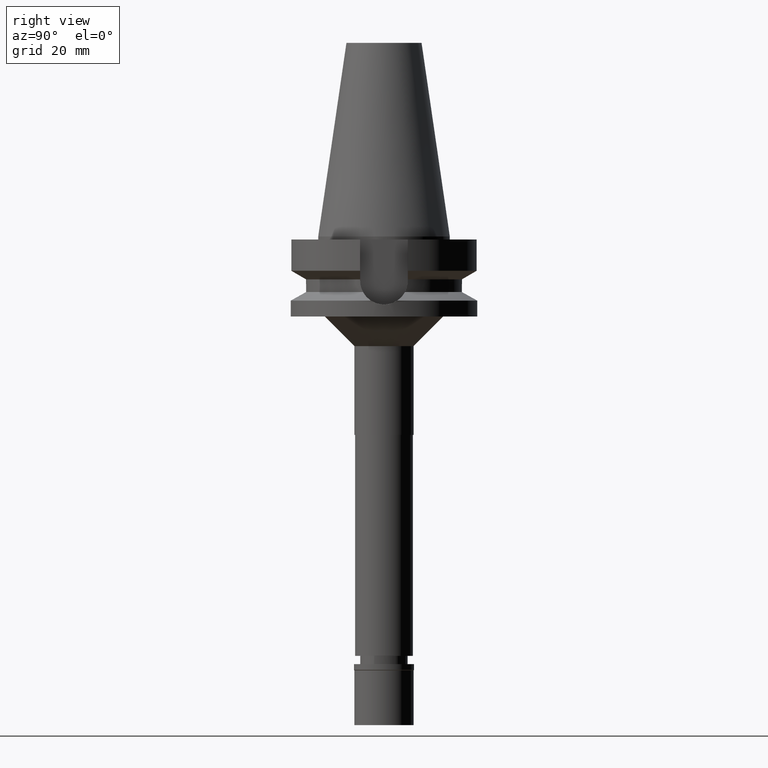
[diagram: clean part render]
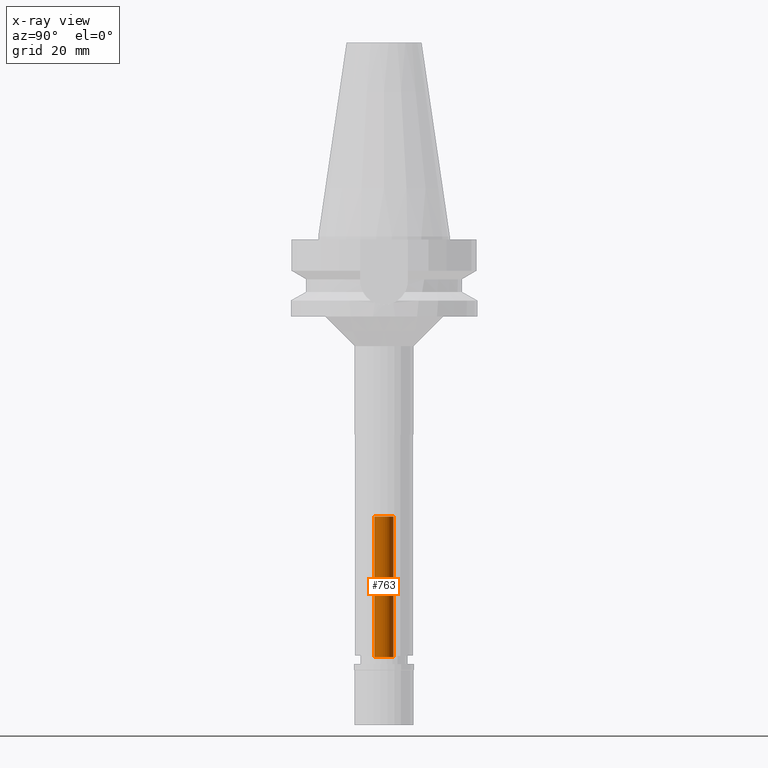
[diagram: x-ray — body ghosted, one internal face saturated and labeled with its STEP entity id]
A machine part, right view, then the same camera in x-ray: the body is ghosted and one INTERNAL B-rep face — a face not visible from any outside direction — is saturated and labeled: STEP entity #763.
In plain terms, the highlighted cylindrical surface (edge-blend (fillet) strip) has radius 3.2 mm, axis along (0, 0, -1).
Its self-contained STEP definition (entity closure, byte-faithful):
#43 = CARTESIAN_POINT ( 'NONE',  ( 0.0000000000000000000, 3.200000000000000178, -142.0000000000000000 ) ) ;
#144 = VECTOR ( 'NONE', #1906, 1000.000000000000000 ) ;
#149 = CARTESIAN_POINT ( 'NONE',  ( 0.0000000000000000000, -3.200000000000000178, -94.60000000000000853 ) ) ;
#171 = FACE_OUTER_BOUND ( 'NONE', #3123, .T. ) ;
#225 = EDGE_CURVE ( 'NONE', #1654, #758, #2394, .T. ) ;
#233 = VERTEX_POINT ( 'NONE', #2704 ) ;
#294 = LINE ( 'NONE', #2990, #1760 ) ;
#303 = DIRECTION ( 'NONE',  ( 0.0000000000000000000, 1.000000000000000000, 0.0000000000000000000 ) ) ;
#368 = EDGE_CURVE ( 'NONE', #233, #1990, #294, .T. ) ;
#484 = CARTESIAN_POINT ( 'NONE',  ( 0.0000000000000000000, 0.0000000000000000000, 0.0000000000000000000 ) ) ;
#668 = CYLINDRICAL_SURFACE ( 'NONE', #2499, 3.200000000000000178 ) ;
#752 = ORIENTED_EDGE ( 'NONE', *, *, #2142, .T. ) ;
#758 = VERTEX_POINT ( 'NONE', #2630 ) ;
#763 = ADVANCED_FACE ( 'NONE', ( #171 ), #668, .F. ) ;
#933 = AXIS2_PLACEMENT_3D ( 'NONE', #2564, #3042, #2353 ) ;
#990 = DIRECTION ( 'NONE',  ( 0.0000000000000000000, 0.0000000000000000000, 1.000000000000000000 ) ) ;
#1017 = DIRECTION ( 'NONE',  ( 0.0000000000000000000, 0.0000000000000000000, -1.000000000000000000 ) ) ;
#1359 = AXIS2_PLACEMENT_3D ( 'NONE', #2457, #1017, #303 ) ;
#1466 = DIRECTION ( 'NONE',  ( 0.0000000000000000000, 0.0000000000000000000, -1.000000000000000000 ) ) ;
#1551 = EDGE_CURVE ( 'NONE', #1654, #233, #2654, .T. ) ;
#1654 = VERTEX_POINT ( 'NONE', #43 ) ;
#1717 = CARTESIAN_POINT ( 'NONE',  ( 0.0000000000000000000, 3.200000000000000178, -142.0000000000000000 ) ) ;
#1760 = VECTOR ( 'NONE', #990, 1000.000000000000000 ) ;
#1906 = DIRECTION ( 'NONE',  ( 0.0000000000000000000, 0.0000000000000000000, 1.000000000000000000 ) ) ;
#1990 = VERTEX_POINT ( 'NONE', #149 ) ;
#2142 = EDGE_CURVE ( 'NONE', #1990, #758, #2231, .T. ) ;
#2231 = CIRCLE ( 'NONE', #933, 3.200000000000000178 ) ;
#2353 = DIRECTION ( 'NONE',  ( 0.0000000000000000000, -1.000000000000000000, 0.0000000000000000000 ) ) ;
#2394 = LINE ( 'NONE', #1717, #144 ) ;
#2451 = ORIENTED_EDGE ( 'NONE', *, *, #1551, .T. ) ;
#2457 = CARTESIAN_POINT ( 'NONE',  ( 0.0000000000000000000, 0.0000000000000000000, -142.0000000000000000 ) ) ;
#2481 = ORIENTED_EDGE ( 'NONE', *, *, #225, .F. ) ;
#2499 = AXIS2_PLACEMENT_3D ( 'NONE', #484, #1466, #2699 ) ;
#2529 = ORIENTED_EDGE ( 'NONE', *, *, #368, .T. ) ;
#2564 = CARTESIAN_POINT ( 'NONE',  ( 0.0000000000000000000, 0.0000000000000000000, -94.60000000000000853 ) ) ;
#2630 = CARTESIAN_POINT ( 'NONE',  ( 0.0000000000000000000, 3.200000000000000178, -94.60000000000000853 ) ) ;
#2654 = CIRCLE ( 'NONE', #1359, 3.200000000000000178 ) ;
#2699 = DIRECTION ( 'NONE',  ( 0.0000000000000000000, -1.000000000000000000, 0.0000000000000000000 ) ) ;
#2704 = CARTESIAN_POINT ( 'NONE',  ( 0.0000000000000000000, -3.200000000000000178, -142.0000000000000000 ) ) ;
#2990 = CARTESIAN_POINT ( 'NONE',  ( 0.0000000000000000000, -3.200000000000000178, -142.0000000000000000 ) ) ;
#3042 = DIRECTION ( 'NONE',  ( 0.0000000000000000000, 0.0000000000000000000, 1.000000000000000000 ) ) ;
#3123 = EDGE_LOOP ( 'NONE', ( #2451, #2529, #752, #2481 ) ) ;